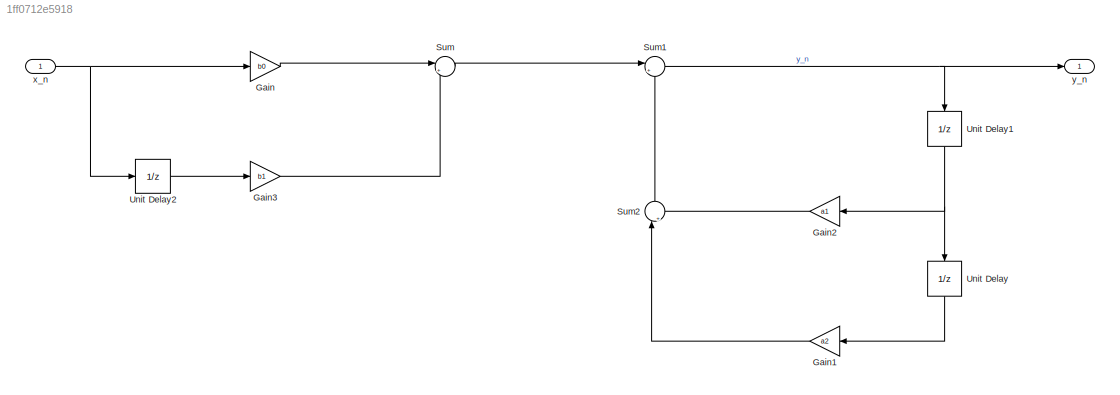
MODEL slx_1ff0712e5918
KIND model
CONFIG AbsTol = auto
CONFIG EnableMultiTasking = off
CONFIG FixedStep = auto
CONFIG MaxStep = auto
CONFIG MinStep = auto
CONFIG RelTol = 1e-3
CONFIG SampleTimeConstraint = Unconstrained
CONFIG SolverName = VariableStepAuto
CONFIG StartTime = 0.0
CONFIG StopTime = 10.0
WORKSPACE source: mxarray member
WORKSPACE a1: Simulink.Parameter (value not decoded)
WORKSPACE a2: Simulink.Parameter (value not decoded)
WORKSPACE b0: Simulink.Parameter (value not decoded)
WORKSPACE b1: Simulink.Parameter (value not decoded)
BLOCK [Gain] Gain
  Gain = b0
BLOCK [Gain] Gain1
  Gain = a2
  NameLocation = top
BLOCK [Gain] Gain2
  Gain = a1
  NameLocation = top
BLOCK [Gain] Gain3
  Gain = b1
BLOCK [Sum] Sum
  Inputs = |++
  Ports = [2, 1]
BLOCK [Sum] Sum1
  Inputs = |++
  Ports = [2, 1]
BLOCK [Sum] Sum2
  Inputs = |++
  NameLocation = right
  Ports = [2, 1]
BLOCK [UnitDelay] Unit Delay
  HasFrameUpgradeWarning = on
  NameLocation = left
  SampleTime = -1
BLOCK [UnitDelay] Unit Delay1
  HasFrameUpgradeWarning = on
  NameLocation = left
  SampleTime = -1
BLOCK [UnitDelay] Unit Delay2
  HasFrameUpgradeWarning = on
  SampleTime = -1
BLOCK [Inport] x_n
BLOCK [Outport] y_n
LINE Gain1:1 -> Sum2:1
LINE Gain2:1 -> Sum2:2
LINE Gain3:1 -> Sum:2
LINE Gain:1 -> Sum:1
NET Sum1:1 -> Unit Delay1:1, y_n:1
LINE Sum2:1 -> Sum1:2
LINE Sum:1 -> Sum1:1
NET Unit Delay1:1 -> Gain2:1, Unit Delay:1
LINE Unit Delay2:1 -> Gain3:1
LINE Unit Delay:1 -> Gain1:1
NET x_n:1 -> Gain:1, Unit Delay2:1
note: NET lines group one-source signal fan-out (src -> all destinations, sorted); 1:1 wires keep LINE
